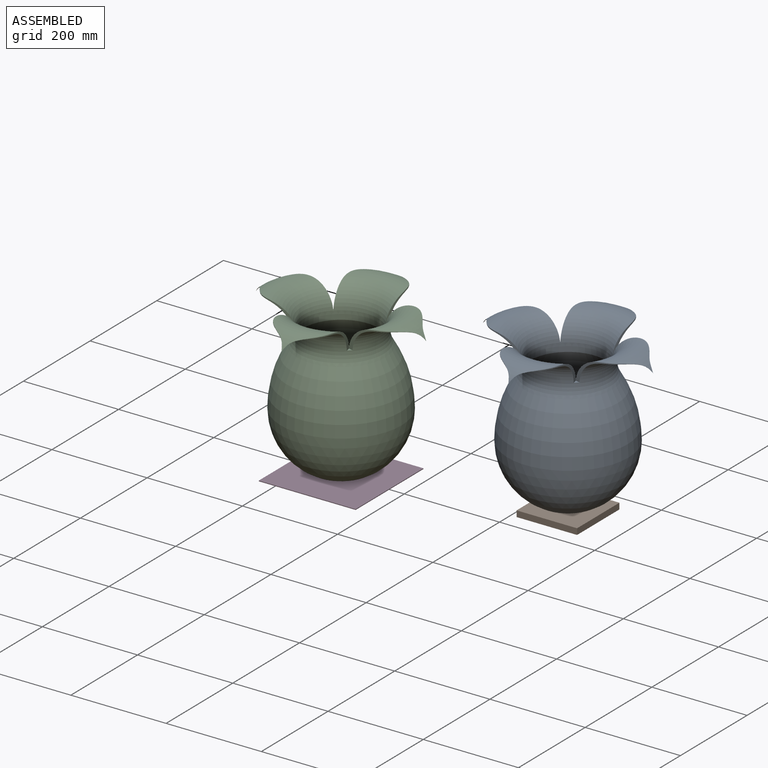
[diagram: assembled view]
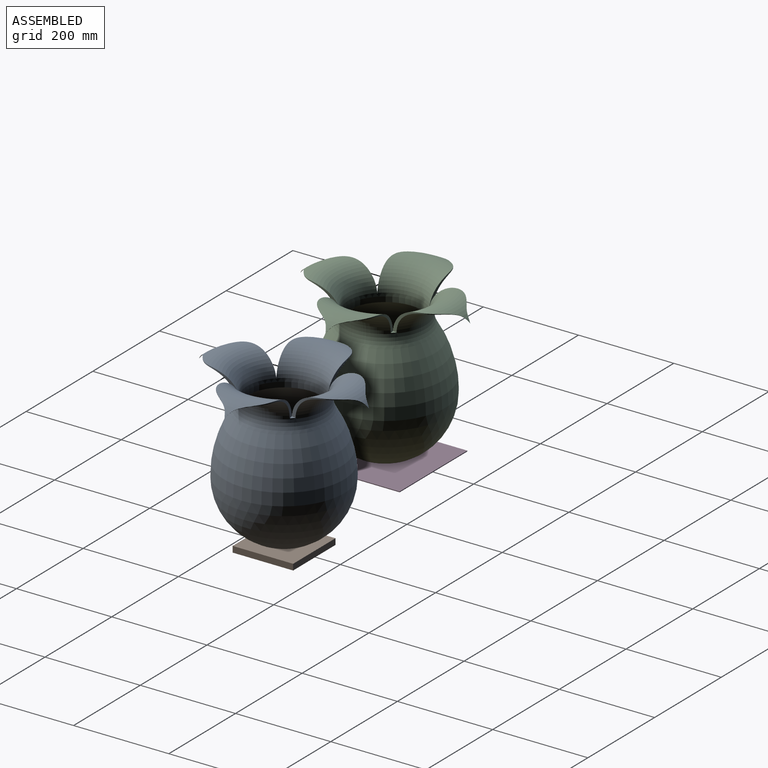
[diagram: assembled view, second angle]
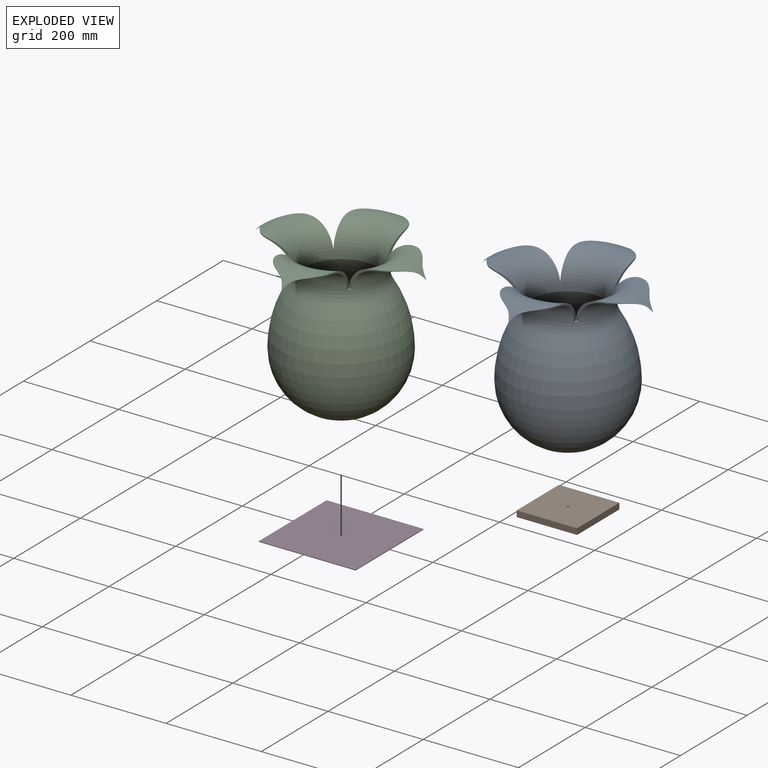
[diagram: exploded view]
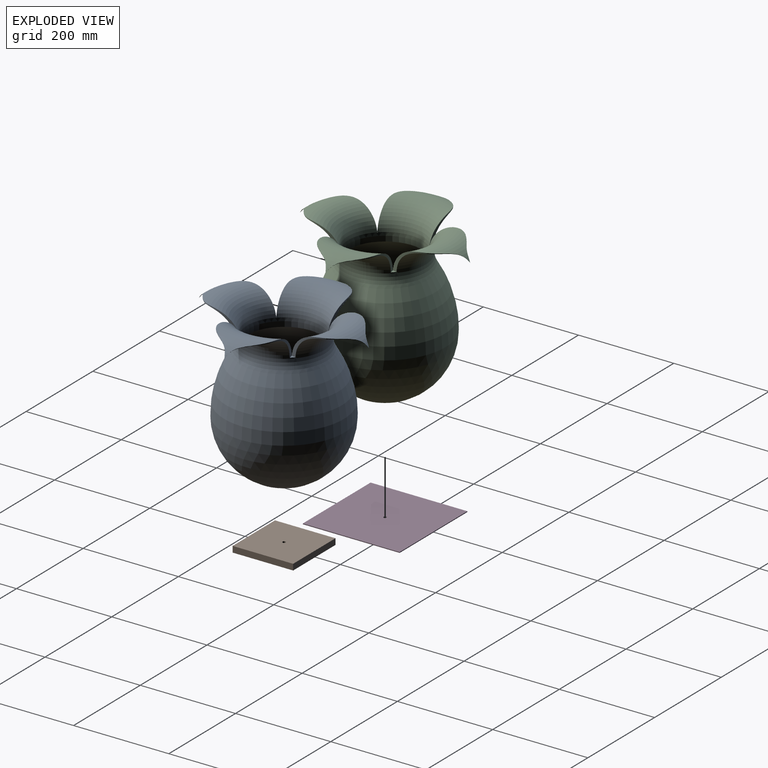
[diagram: exploded view, second angle]
ASSEMBLY  parts=4 mates=2
PART A: 20 faces, bbox 405.2x405.2x326.5 mm
  f0: sphere r=127mm, area 101309.8mm2, adj f6,f19
  f1: sphere r=120.65mm, area 91429mm2, adj f4,f19
  f2: torus R=132.14mm, axis (0,0,-1), area 55461.4mm2, adj f5,f7,f8,f10,f11,f13,f14,f16
  f3: torus R=135.72mm, axis (0,0,-1), area 64754.4mm2, adj f6,f7,f8,f9,f10,f11,f12,f13
  f4: revolved ~241.3x241.3mm, area 93099.8mm2, adj f1,f5
  f5: cone r=77.2mm half-angle=3.1deg, axis (0,0,-1), area 5455.8mm2, adj f2,f4
  f6: revolved ~254x254mm, area 91581.2mm2, adj f0,f3
  f7: extruded ~124.21x60.62mm, area 551.4mm2, adj f2,f3,f8,f9
  f8: extruded ~124.21x60.62mm, area 551.4mm2, adj f2,f3,f7,f9
  f9: plane 8.96x8.95mm, normal (0,0,1), area 39.4mm2, adj f3,f7,f8
  f10: extruded ~124.21x60.62mm, area 551.4mm2, adj f2,f3,f11,f12
  f11: extruded ~124.21x60.62mm, area 551.4mm2, adj f2,f3,f10,f12
  f12: plane 8.96x8.95mm, normal (0,0,1), area 39.4mm2, adj f3,f10,f11
  f13: extruded ~124.21x60.62mm, area 551.4mm2, adj f2,f3,f14,f15
  f14: extruded ~124.21x60.62mm, area 551.4mm2, adj f2,f3,f13,f15
  f15: plane 8.96x8.95mm, normal (0,0,1), area 39.4mm2, adj f3,f13,f14
  f16: extruded ~124.21x60.62mm, area 551.4mm2, adj f2,f3,f17,f18
  f17: extruded ~124.21x60.62mm, area 551.4mm2, adj f2,f3,f16,f18
  f18: plane 8.96x8.95mm, normal (0,0,1), area 39.4mm2, adj f3,f16,f17
  f19: cylinder r=3.17mm len=6.35mm, axis (0,0,-1), area 126.7mm2, adj f0,f1
PART B: 7 faces, bbox 127x127x12.7 mm
  f0: plane 127x12.7mm, normal (0,1,0), area 1612.9mm2, adj f1,f4,f5,f6
  f1: plane 127x12.7mm, normal (-1,0,0), area 1612.9mm2, adj f0,f2,f5,f6
  f2: plane 127x12.7mm, normal (0,-1,0), area 1612.9mm2, adj f1,f4,f5,f6
  f3: cylinder r=3.17mm len=12.7mm, axis (0,0,-1), area 253.4mm2, adj f5,f6
  f4: plane 127x12.7mm, normal (1,0,0), area 1612.9mm2, adj f0,f2,f5,f6
  f5: plane 127x127mm, normal (0,0,1), area 16097.3mm2, adj f0,f1,f2,f3,f4
  f6: plane 127x127mm, normal (0,0,-1), area 16097.3mm2, adj f0,f1,f2,f3,f4
PART C: same geometry as A
PART D: 7 faces, bbox 203.2x203.2x1.6 mm
  f0: plane 203.2x1.59mm, normal (1,0,0), area 322.6mm2, adj f1,f3,f5,f6
  f1: plane 203.2x1.59mm, normal (0,1,0), area 322.6mm2, adj f0,f2,f5,f6
  f2: plane 203.2x1.59mm, normal (-1,0,0), area 322.6mm2, adj f1,f3,f5,f6
  f3: plane 203.2x1.59mm, normal (0,-1,0), area 322.6mm2, adj f0,f2,f5,f6
  f4: cylinder r=3.17mm len=6.35mm, axis (0,0,-1), area 31.7mm2, adj f5,f6
  f5: plane 203.2x203.2mm, normal (0,0,1), area 41258.6mm2, adj f0,f1,f2,f3,f4
  f6: plane 203.2x203.2mm, normal (0,0,-1), area 41258.6mm2, adj f0,f1,f2,f3,f4
PLACE A t=(-154,54.2,49.55)mm
PLACE B t=(-154,54.2,36.89)mm
PLACE C rot(axis=(-0.78,0.2,0.59),0deg) t=(-573.44,-27.3,29.53)mm
PLACE D rot(axis=(-0.78,0.2,0.59),0deg) t=(-573.44,-27.3,27.99)mm
MATE fastened D.f4 <-> C.f19  axis (0,0,1) through (-573.44,-27.3,29.57)mm
MATE fastened B.f3 <-> A.f19  axis (0,0,1) through (-154,54.2,49.59)mm
